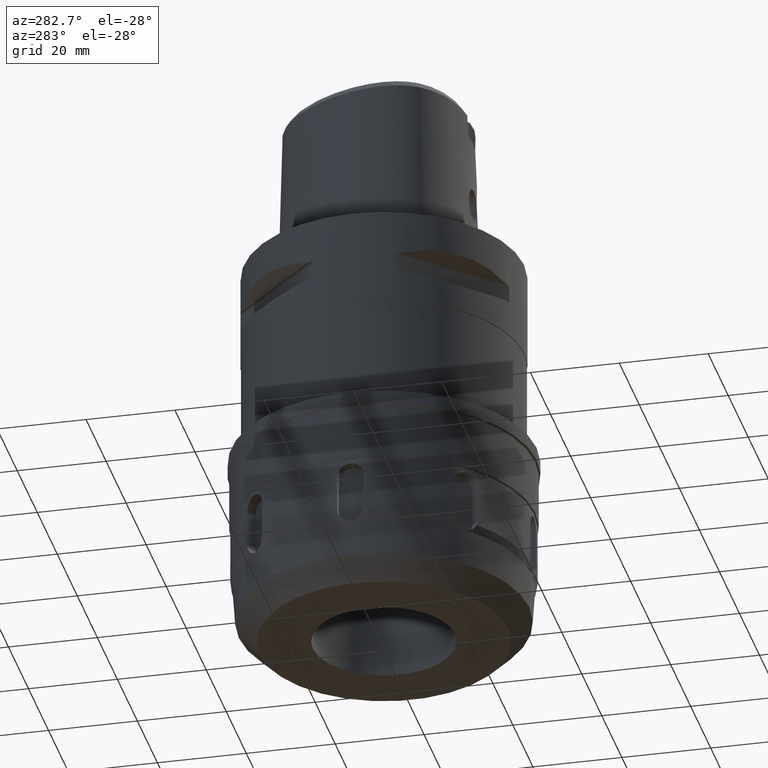
[diagram: clean part render]
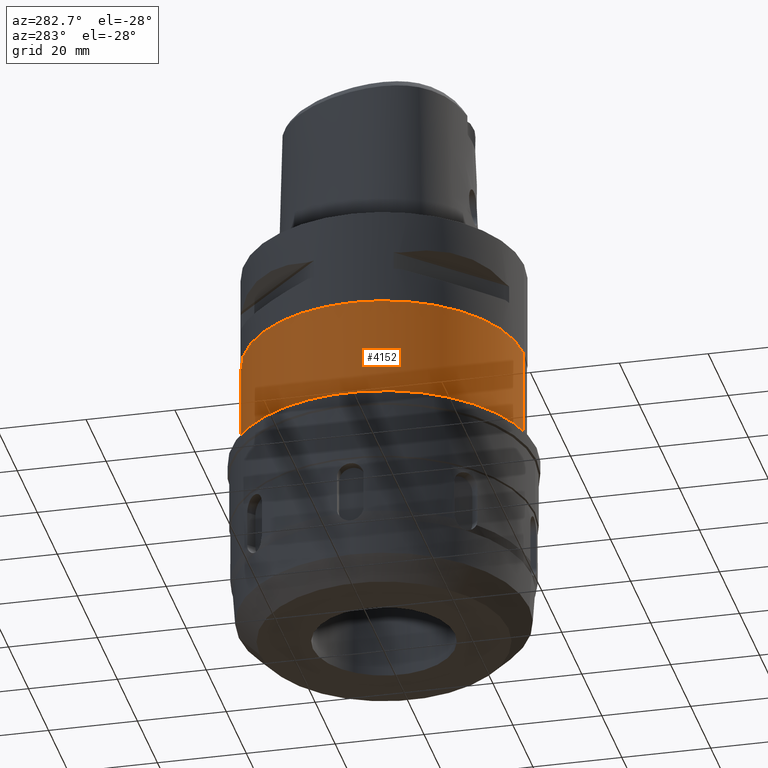
[diagram: same view with one face highlighted and labeled with its STEP entity id]
A machine part, auxiliary view. The second image highlights one B-rep face of the part: STEP entity #4152.
In plain terms, the highlighted cylindrical surface (partial cylindrical patch) has radius 31.4 mm, axis along (0, 0, -1).
Its self-contained STEP definition (entity closure, byte-faithful):
#545=CARTESIAN_POINT('',(0.E0,0.E0,-2.2E1));
#546=DIRECTION('',(0.E0,0.E0,-1.E0));
#547=DIRECTION('',(0.E0,-1.E0,0.E0));
#548=AXIS2_PLACEMENT_3D('',#545,#546,#547);
#553=DIRECTION('',(0.E0,0.E0,-1.E0));
#554=VECTOR('',#553,2.24E1);
#555=CARTESIAN_POINT('',(0.E0,-3.14E1,-2.2E1));
#556=LINE('',#555,#554);
#560=DIRECTION('',(0.E0,0.E0,-1.E0));
#561=VECTOR('',#560,2.24E1);
#562=CARTESIAN_POINT('',(0.E0,3.14E1,-2.2E1));
#563=LINE('',#562,#561);
#582=CARTESIAN_POINT('',(0.E0,0.E0,-4.44E1));
#583=DIRECTION('',(0.E0,0.E0,1.E0));
#584=DIRECTION('',(0.E0,1.E0,0.E0));
#585=AXIS2_PLACEMENT_3D('',#582,#583,#584);
#3037=CARTESIAN_POINT('',(0.E0,3.14E1,-2.2E1));
#3038=VERTEX_POINT('',#3037);
#3039=CARTESIAN_POINT('',(0.E0,-3.14E1,-2.2E1));
#3040=VERTEX_POINT('',#3039);
#3041=CARTESIAN_POINT('',(0.E0,3.14E1,-4.44E1));
#3042=VERTEX_POINT('',#3041);
#3043=CARTESIAN_POINT('',(0.E0,-3.14E1,-4.44E1));
#3044=VERTEX_POINT('',#3043);
#4138=CARTESIAN_POINT('',(0.E0,1.279755905109E-14,4.5E0));
#4139=DIRECTION('',(0.E0,0.E0,-1.E0));
#4140=DIRECTION('',(0.E0,-1.E0,0.E0));
#4141=AXIS2_PLACEMENT_3D('',#4138,#4139,#4140);
#4142=CYLINDRICAL_SURFACE('',#4141,3.14E1);
#4144=ORIENTED_EDGE('',*,*,#4143,.F.);
#4145=ORIENTED_EDGE('',*,*,#4133,.F.);
#4147=ORIENTED_EDGE('',*,*,#4146,.T.);
#4149=ORIENTED_EDGE('',*,*,#4148,.F.);
#4150=EDGE_LOOP('',(#4144,#4145,#4147,#4149));
#4151=FACE_OUTER_BOUND('',#4150,.F.);
#549=CIRCLE('',#548,3.14E1);
#586=CIRCLE('',#585,3.14E1);
#4133=EDGE_CURVE('',#3040,#3038,#549,.T.);
#4143=EDGE_CURVE('',#3038,#3042,#563,.T.);
#4146=EDGE_CURVE('',#3040,#3044,#556,.T.);
#4148=EDGE_CURVE('',#3042,#3044,#586,.T.);
#4152=ADVANCED_FACE('',(#4151),#4142,.T.);